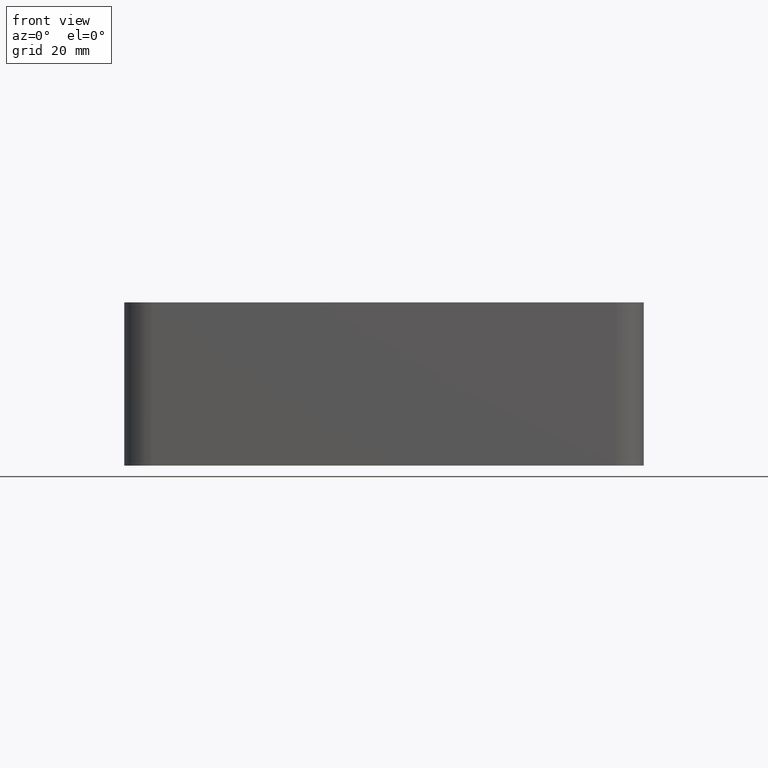
[diagram: clean part render]
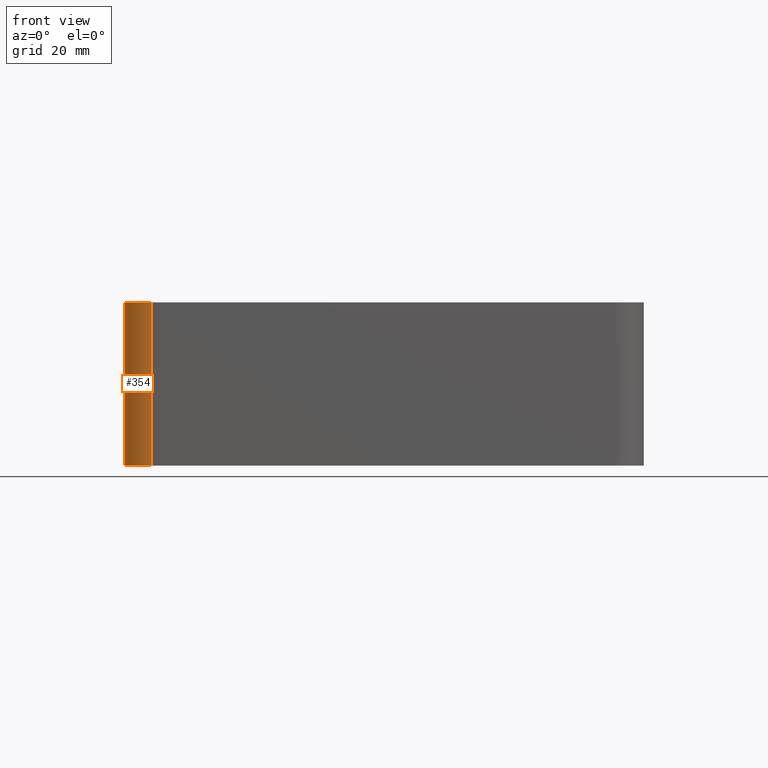
[diagram: same view with one face highlighted and labeled with its STEP entity id]
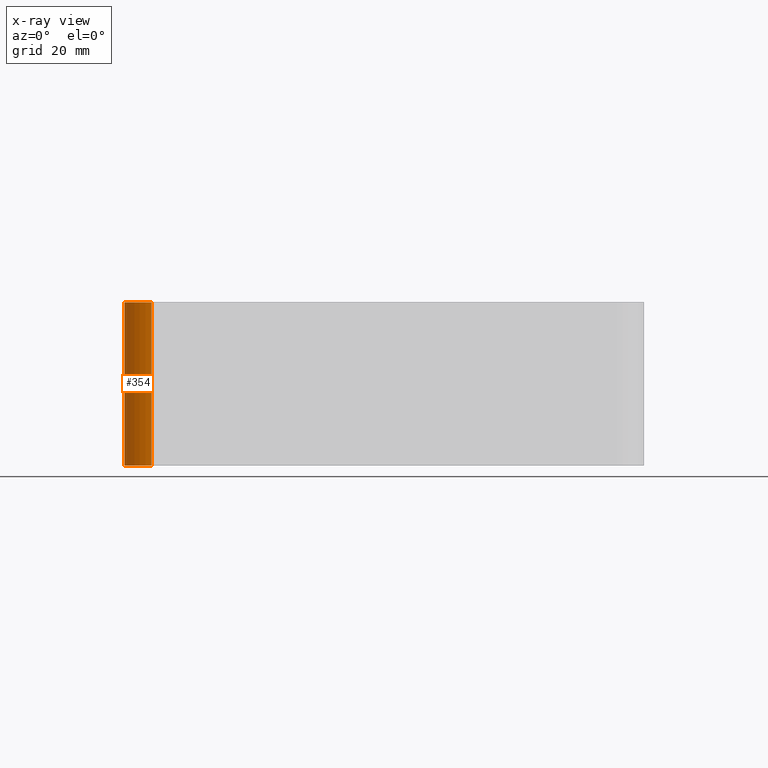
[diagram: x-ray of the same camera — body ghosted, the highlighted face saturated]
A machine part, front view. The second image highlights one B-rep face of the part: STEP entity #354.
The next image is the same camera in x-ray: the body ghosted, the highlighted face saturated — about 0% of this face is hidden behind the body in this view.
In plain terms, the highlighted cylindrical surface (edge-blend (fillet) strip) has radius 10 mm, axis along (0, 0, -1).
Its self-contained STEP definition (entity closure, byte-faithful):
#22=CIRCLE('',#393,10.);
#25=CIRCLE('',#399,10.);
#29=CYLINDRICAL_SURFACE('',#398,10.);
#44=FACE_OUTER_BOUND('',#64,.T.);
#64=EDGE_LOOP('',(#295,#296,#297,#298));
#104=LINE('',#581,#144);
#106=LINE('',#585,#146);
#144=VECTOR('',#478,10.);
#146=VECTOR('',#482,10.);
#175=VERTEX_POINT('',#568);
#176=VERTEX_POINT('',#570);
#179=VERTEX_POINT('',#580);
#180=VERTEX_POINT('',#584);
#217=EDGE_CURVE('',#176,#175,#22,.T.);
#222=EDGE_CURVE('',#179,#176,#104,.T.);
#224=EDGE_CURVE('',#175,#180,#106,.T.);
#225=EDGE_CURVE('',#180,#179,#25,.T.);
#295=ORIENTED_EDGE('',*,*,#217,.T.);
#296=ORIENTED_EDGE('',*,*,#224,.T.);
#297=ORIENTED_EDGE('',*,*,#225,.T.);
#298=ORIENTED_EDGE('',*,*,#222,.T.);
#354=ADVANCED_FACE('',(#44),#29,.T.);
#393=AXIS2_PLACEMENT_3D('',#571,#466,#467);
#398=AXIS2_PLACEMENT_3D('',#583,#480,#481);
#399=AXIS2_PLACEMENT_3D('',#586,#483,#484);
#466=DIRECTION('center_axis',(0.,0.,1.));
#467=DIRECTION('ref_axis',(-0.707106781186547,-0.707106781186547,0.));
#478=DIRECTION('',(0.,0.,-1.));
#480=DIRECTION('center_axis',(0.,0.,-1.));
#481=DIRECTION('ref_axis',(-0.707106781186547,-0.707106781186547,0.));
#482=DIRECTION('',(0.,0.,1.));
#483=DIRECTION('center_axis',(0.,0.,-1.));
#484=DIRECTION('ref_axis',(-0.707106781186547,-0.707106781186547,0.));
#568=CARTESIAN_POINT('',(-85.4999999999998,-89.7500000000001,-60.));
#570=CARTESIAN_POINT('',(-95.4999999999998,-79.7500000000001,-60.));
#571=CARTESIAN_POINT('Origin',(-85.4999999999998,-79.7500000000001,-60.));
#580=CARTESIAN_POINT('',(-95.4999999999998,-79.7500000000001,0.));
#581=CARTESIAN_POINT('',(-95.4999999999998,-79.7500000000001,0.));
#583=CARTESIAN_POINT('Origin',(-85.4999999999998,-79.7500000000001,0.));
#584=CARTESIAN_POINT('',(-85.4999999999998,-89.7500000000001,0.));
#585=CARTESIAN_POINT('',(-85.4999999999998,-89.7500000000001,0.));
#586=CARTESIAN_POINT('Origin',(-85.4999999999998,-79.7500000000001,0.));